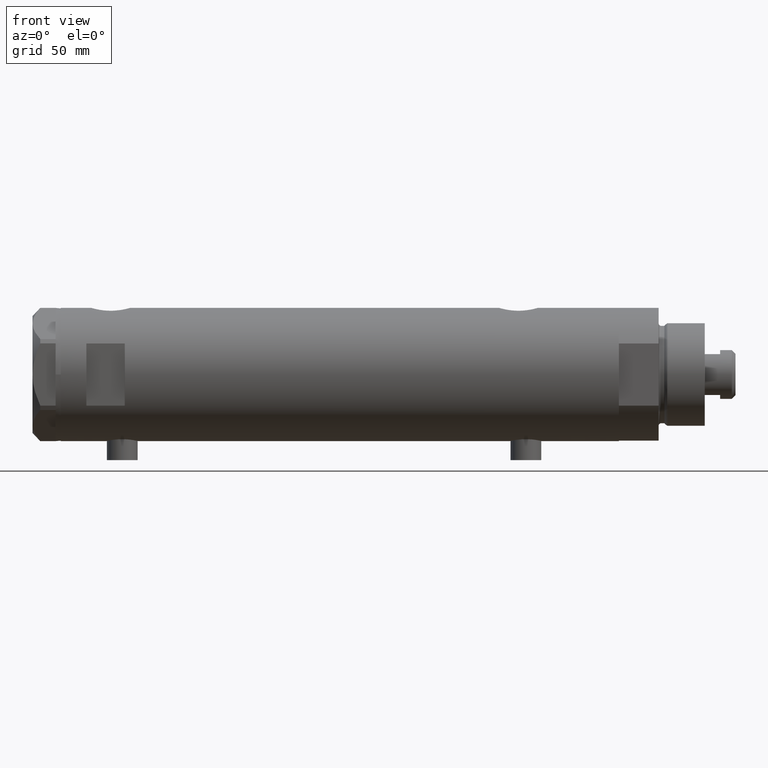
[diagram: clean part render]
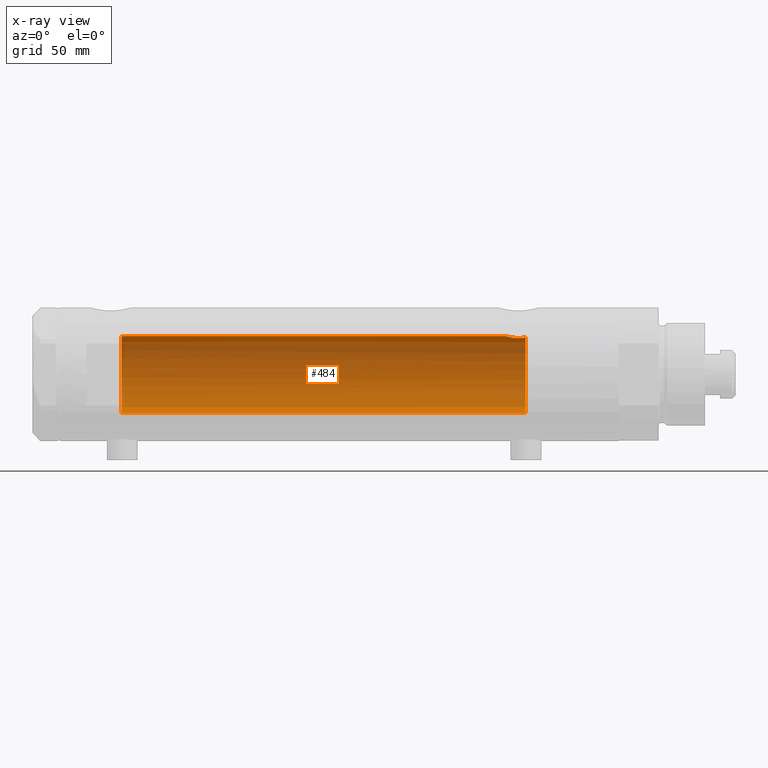
[diagram: x-ray — body ghosted, one internal face saturated and labeled with its STEP entity id]
A machine part, front view, then the same camera in x-ray: the body is ghosted and one INTERNAL B-rep face — a face not visible from any outside direction — is saturated and labeled: STEP entity #484.
In plain terms, the highlighted cylindrical surface (partial cylindrical patch) has radius 15 mm, axis along (1, 0, -0).
Its self-contained STEP definition (entity closure, byte-faithful):
#7 = CARTESIAN_POINT ( 'NONE',  ( 14.23996709707016173, 4.714409263334270683, -68.52876674044655658 ) ) ;
#159 = CARTESIAN_POINT ( 'NONE',  ( 14.82638779339053947, 2.275571356824483082, 85.15000000000000568 ) ) ;
#310 = CARTESIAN_POINT ( 'NONE',  ( 14.99509227038106118, 0.4430293709771145894, -64.90006686301529726 ) ) ;
#334 = CARTESIAN_POINT ( 'NONE',  ( 14.39420242489971358, 4.221147702577654037, -72.17871871185444377 ) ) ;
#484 = ADVANCED_FACE ( 'NONE', ( #2404 ), #866, .F. ) ;
#546 = CARTESIAN_POINT ( 'NONE',  ( 15.00000000000000000, 0.000000000000000000, 84.58500000000000796 ) ) ;
#567 = CARTESIAN_POINT ( 'NONE',  ( 14.87714698525761214, 1.924825815456619571, 84.97761219789977361 ) ) ;
#571 = EDGE_CURVE ( 'NONE', #3796, #2214, #3764, .T. ) ;
#585 = DIRECTION ( 'NONE',  ( -1.000000000000000000, 0.000000000000000000, 0.000000000000000000 ) ) ;
#638 = DIRECTION ( 'NONE',  ( 0.000000000000000000, 0.000000000000000000, -1.000000000000000000 ) ) ;
#737 = CARTESIAN_POINT ( 'NONE',  ( 14.92306512695867227, 1.532295990539007446, -65.12730056478241636 ) ) ;
#749 = DIRECTION ( 'NONE',  ( -0.000000000000000000, -0.000000000000000000, -1.000000000000000000 ) ) ;
#851 = AXIS2_PLACEMENT_3D ( 'NONE', #2382, #4271, #3848 ) ;
#862 = EDGE_CURVE ( 'NONE', #3418, #2430, #1547, .T. ) ;
#866 = CYLINDRICAL_SURFACE ( 'NONE', #851, 15.00000000000000000 ) ;
#1001 = ORIENTED_EDGE ( 'NONE', *, *, #571, .T. ) ;
#1022 = CARTESIAN_POINT ( 'NONE',  ( 14.64710079709034929, 3.249565827911967020, -66.10237283776274353 ) ) ;
#1098 = CARTESIAN_POINT ( 'NONE',  ( 14.90012193493785375, 1.740148100968099243, -65.20148967824481190 ) ) ;
#1142 = B_SPLINE_CURVE_WITH_KNOTS ( 'NONE', 3,
 ( #2787, #1214, #567, #4322, #3928, #4350, #4596, #546 ),
 .UNSPECIFIED., .F., .F.,
 ( 4, 2, 2, 4 ),
 ( 0.02826119741494477131, 0.02885214443185063482, 0.02944309144875649834, 0.03062498548256823577 ),
 .UNSPECIFIED. ) ;
#1147 = CARTESIAN_POINT ( 'NONE',  ( 14.20808274384303616, 4.809639920165278859, -70.51496246579131366 ) ) ;
#1214 = CARTESIAN_POINT ( 'NONE',  ( 14.85285765243877343, 2.103108122960808402, 85.05873200114291421 ) ) ;
#1235 = ORIENTED_EDGE ( 'NONE', *, *, #862, .F. ) ;
#1388 = CARTESIAN_POINT ( 'NONE',  ( 14.81695028448457130, 2.344053258630414138, -65.48122781573721340 ) ) ;
#1422 = VERTEX_POINT ( 'NONE', #3964 ) ;
#1431 = B_SPLINE_CURVE_WITH_KNOTS ( 'NONE', 3,
 ( #3703, #1829, #310, #2933, #4471, #737, #1098, #4109, #1388, #2216, #1022, #1850, #3342, #2511, #4030, #3370, #7, #1515, #2992, #4519, #1147, #2524, #3619, #2572, #4728, #334, #1798, #2136 ),
 .UNSPECIFIED., .F., .F.,
 ( 4, 2, 2, 2, 2, 2, 2, 2, 2, 2, 2, 2, 2, 4 ),
 ( 0.01531448496322442530, 0.01597936247866479920, 0.01664423999410517135, 0.01730911750954554698, 0.01797399502498591914, 0.01930375005586666692, 0.02063350508674741471, 0.02129838260218779034, 0.02196326011762816249, 0.02329301514850894844, 0.02395789266394934142, 0.02462277017938973439, 0.02528764769483013083, 0.02595252521027052381 ),
 .UNSPECIFIED. ) ;
#1515 = CARTESIAN_POINT ( 'NONE',  ( 14.19413554982521575, 4.851369549374614287, -69.17746179061400369 ) ) ;
#1524 = DIRECTION ( 'NONE',  ( -0.000000000000000000, -0.000000000000000000, -1.000000000000000000 ) ) ;
#1547 = LINE ( 'NONE', #1576, #3350 ) ;
#1576 = CARTESIAN_POINT ( 'NONE',  ( 15.00000000000000000, 1.836970198721029589E-15, 108.9499999999999886 ) ) ;
#1687 = EDGE_CURVE ( 'NONE', #2993, #3418, #1142, .T. ) ;
#1798 = CARTESIAN_POINT ( 'NONE',  ( 14.42780822725581125, 4.105572710089623101, -72.36940228115442153 ) ) ;
#1829 = CARTESIAN_POINT ( 'NONE',  ( 15.00000000000000178, 0.2215872191885703835, -64.88500000000000512 ) ) ;
#1850 = CARTESIAN_POINT ( 'NONE',  ( 14.49939476291675078, 3.855488469592456280, -66.74998822577916258 ) ) ;
#1880 = EDGE_CURVE ( 'NONE', #2430, #2214, #1431, .T. ) ;
#1962 = ORIENTED_EDGE ( 'NONE', *, *, #1687, .F. ) ;
#2015 = AXIS2_PLACEMENT_3D ( 'NONE', #2130, #2796, #4359 ) ;
#2060 = CARTESIAN_POINT ( 'NONE',  ( 0.000000000000000000, 0.000000000000000000, -72.54999999999999716 ) ) ;
#2077 = EDGE_CURVE ( 'NONE', #2993, #1422, #4084, .T. ) ;
#2130 = CARTESIAN_POINT ( 'NONE',  ( 0.000000000000000000, 0.000000000000000000, 85.15000000000000568 ) ) ;
#2136 = CARTESIAN_POINT ( 'NONE',  ( 14.46277203719950855, 3.978470183374510416, -72.54999999999999716 ) ) ;
#2214 = VERTEX_POINT ( 'NONE', #4529 ) ;
#2216 = CARTESIAN_POINT ( 'NONE',  ( 14.72004460873233000, 2.909758128378253428, -65.82614485536704763 ) ) ;
#2232 = EDGE_CURVE ( 'NONE', #1422, #3796, #4483, .T. ) ;
#2382 = CARTESIAN_POINT ( 'NONE',  ( 0.000000000000000000, 0.000000000000000000, 108.9499999999999886 ) ) ;
#2404 = FACE_OUTER_BOUND ( 'NONE', #3701, .T. ) ;
#2430 = VERTEX_POINT ( 'NONE', #2489 ) ;
#2489 = CARTESIAN_POINT ( 'NONE',  ( 15.00000000000000000, 5.959273473684245944E-16, -64.88500000000000512 ) ) ;
#2511 = CARTESIAN_POINT ( 'NONE',  ( 14.33601656325283358, 4.414747171699213268, -67.69405684818109137 ) ) ;
#2524 = CARTESIAN_POINT ( 'NONE',  ( 14.23822651595894762, 4.719656459720485309, -70.95110225956648264 ) ) ;
#2572 = CARTESIAN_POINT ( 'NONE',  ( 14.30582738521794894, 4.511024637967016915, -71.58517547595721453 ) ) ;
#2786 = AXIS2_PLACEMENT_3D ( 'NONE', #2060, #638, #585 ) ;
#2787 = CARTESIAN_POINT ( 'NONE',  ( 14.82638779339053947, 2.275571356824483082, 85.15000000000000568 ) ) ;
#2796 = DIRECTION ( 'NONE',  ( 0.000000000000000000, 0.000000000000000000, 1.000000000000000000 ) ) ;
#2933 = CARTESIAN_POINT ( 'NONE',  ( 14.97547159671690942, 0.8856171163179419326, -64.96107436056318818 ) ) ;
#2967 = ORIENTED_EDGE ( 'NONE', *, *, #1880, .F. ) ;
#2992 = CARTESIAN_POINT ( 'NONE',  ( 14.18274079043653479, 4.883732009304972088, -69.63167541567706564 ) ) ;
#2993 = VERTEX_POINT ( 'NONE', #159 ) ;
#3213 = CARTESIAN_POINT ( 'NONE',  ( 15.00000000000000000, 0.000000000000000000, 84.58500000000000796 ) ) ;
#3342 = CARTESIAN_POINT ( 'NONE',  ( 14.42796195111116830, 4.108450791336243135, -67.10736184290816198 ) ) ;
#3350 = VECTOR ( 'NONE', #1524, 1000.000000000000000 ) ;
#3370 = CARTESIAN_POINT ( 'NONE',  ( 14.25987224063200465, 4.654266980155758127, -68.31645838593742326 ) ) ;
#3374 = CARTESIAN_POINT ( 'NONE',  ( -15.00000000000000000, 0.000000000000000000, -72.54999999999999716 ) ) ;
#3418 = VERTEX_POINT ( 'NONE', #3213 ) ;
#3572 = ORIENTED_EDGE ( 'NONE', *, *, #2232, .T. ) ;
#3619 = CARTESIAN_POINT ( 'NONE',  ( 14.25831405531605078, 4.659025730769710272, -71.16798855846091953 ) ) ;
#3701 = EDGE_LOOP ( 'NONE', ( #1235, #1962, #4620, #3572, #1001, #2967 ) ) ;
#3703 = CARTESIAN_POINT ( 'NONE',  ( 15.00000000000000000, 5.959273473684245944E-16, -64.88500000000000512 ) ) ;
#3764 = CIRCLE ( 'NONE', #2786, 15.00000000000000000 ) ;
#3796 = VERTEX_POINT ( 'NONE', #3374 ) ;
#3848 = DIRECTION ( 'NONE',  ( -1.000000000000000000, 0.000000000000000000, 0.000000000000000000 ) ) ;
#3928 = CARTESIAN_POINT ( 'NONE',  ( 14.93895715383719569, 1.365440931094927590, 84.77638192761230584 ) ) ;
#3964 = CARTESIAN_POINT ( 'NONE',  ( -15.00000000000000000, 0.000000000000000000, 85.15000000000000568 ) ) ;
#4030 = CARTESIAN_POINT ( 'NONE',  ( 14.30778609824508329, 4.504821240468947607, -67.89964104205775186 ) ) ;
#4084 = CIRCLE ( 'NONE', #2015, 15.00000000000000000 ) ;
#4109 = CARTESIAN_POINT ( 'NONE',  ( 14.84719462287499780, 2.145357993387301931, -65.37798666051604357 ) ) ;
#4271 = DIRECTION ( 'NONE',  ( -0.000000000000000000, -0.000000000000000000, -1.000000000000000000 ) ) ;
#4322 = CARTESIAN_POINT ( 'NONE',  ( 14.92022334814851980, 1.556082286439816276, 84.83634472570265928 ) ) ;
#4350 = CARTESIAN_POINT ( 'NONE',  ( 14.98404286071220781, 0.7911628595372716122, 84.63357750803341162 ) ) ;
#4359 = DIRECTION ( 'NONE',  ( 1.000000000000000000, 0.000000000000000000, 0.000000000000000000 ) ) ;
#4471 = CARTESIAN_POINT ( 'NONE',  ( 14.96070684509190940, 1.105917936056764583, -65.00719211967314948 ) ) ;
#4483 = LINE ( 'NONE', #4509, #4546 ) ;
#4509 = CARTESIAN_POINT ( 'NONE',  ( -15.00000000000000000, 0.000000000000000000, 108.9499999999999886 ) ) ;
#4519 = CARTESIAN_POINT ( 'NONE',  ( 14.19789541567449831, 4.839422427565549079, -70.29531557750244986 ) ) ;
#4529 = CARTESIAN_POINT ( 'NONE',  ( 14.46277203719950855, 3.978470183374510416, -72.54999999999999716 ) ) ;
#4546 = VECTOR ( 'NONE', #749, 1000.000000000000000 ) ;
#4596 = CARTESIAN_POINT ( 'NONE',  ( 15.00000000000000533, 0.3998316629799377186, 84.58500000000003638 ) ) ;
#4620 = ORIENTED_EDGE ( 'NONE', *, *, #2077, .T. ) ;
#4728 = CARTESIAN_POINT ( 'NONE',  ( 14.33334483745703025, 4.423389780079200584, -71.78724945987950434 ) ) ;